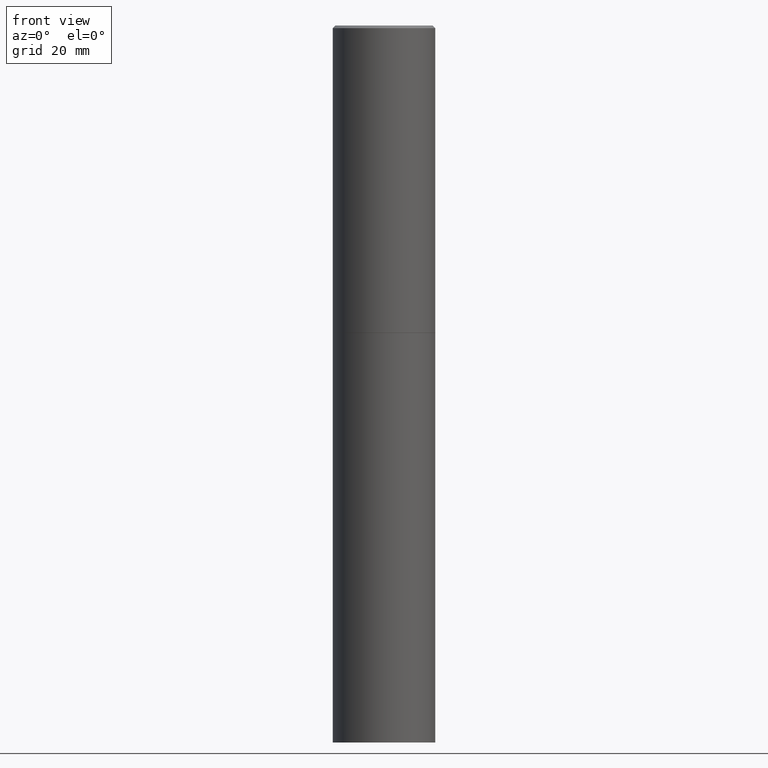
[diagram: clean part render]
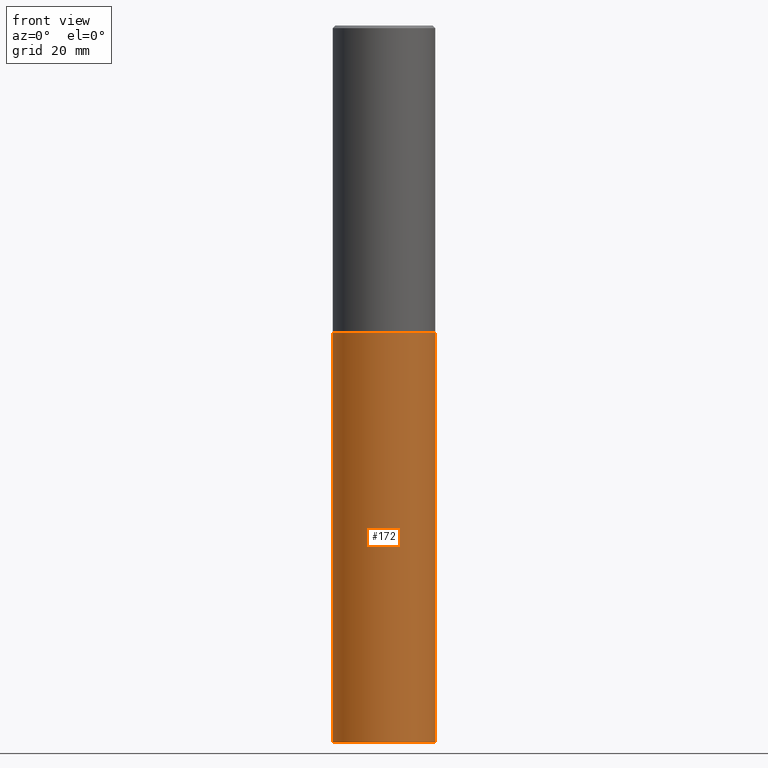
[diagram: same view with one face highlighted and labeled with its STEP entity id]
A machine part, front view. The second image highlights one B-rep face of the part: STEP entity #172.
In plain terms, the highlighted cylindrical surface (partial cylindrical patch) has radius 10 mm, axis along (-0, 0, 1).
Its self-contained STEP definition (entity closure, byte-faithful):
#1 = LINE ( 'NONE', #91, #218 ) ;
#22 = ORIENTED_EDGE ( 'NONE', *, *, #226, .F. ) ;
#27 = VERTEX_POINT ( 'NONE', #207 ) ;
#36 = EDGE_CURVE ( 'NONE', #145, #307, #176, .T. ) ;
#39 = DIRECTION ( 'NONE',  ( 1.000000000000000000, -6.982962677686265922E-15, 4.876176775795935793E-29 ) ) ;
#42 = EDGE_CURVE ( 'NONE', #307, #27, #206, .T. ) ;
#49 = ORIENTED_EDGE ( 'NONE', *, *, #198, .F. ) ;
#61 = DIRECTION ( 'NONE',  ( -2.445468806185136877E-29, 3.491481338843145188E-15, 1.000000000000000000 ) ) ;
#63 = DIRECTION ( 'NONE',  ( -2.445468806185136597E-29, 3.491481338843145583E-15, 1.000000000000000000 ) ) ;
#66 = AXIS2_PLACEMENT_3D ( 'NONE', #295, #63, #39 ) ;
#84 = EDGE_LOOP ( 'NONE', ( #49, #187, #114, #22 ) ) ;
#91 = CARTESIAN_POINT ( 'NONE',  ( -0.3937000000000000499, 2.797406750687514786E-15, -1.936584745033356735E-29 ) ) ;
#94 = DIRECTION ( 'NONE',  ( 1.000000000000000000, -6.982962677686267499E-15, 0.000000000000000000 ) ) ;
#104 = AXIS2_PLACEMENT_3D ( 'NONE', #227, #181, #333 ) ;
#114 = ORIENTED_EDGE ( 'NONE', *, *, #42, .T. ) ;
#135 = AXIS2_PLACEMENT_3D ( 'NONE', #349, #343, #94 ) ;
#144 = VECTOR ( 'NONE', #146, 39.37007874015748143 ) ;
#145 = VERTEX_POINT ( 'NONE', #209 ) ;
#146 = DIRECTION ( 'NONE',  ( -2.445468806185136877E-29, 3.491481338843145188E-15, 1.000000000000000000 ) ) ;
#172 = ADVANCED_FACE ( 'NONE', ( #325 ), #192, .T. ) ;
#176 = CIRCLE ( 'NONE', #104, 0.3937000000000000499 ) ;
#181 = DIRECTION ( 'NONE',  ( -2.445468806185136597E-29, 3.491481338843145583E-15, 1.000000000000000000 ) ) ;
#187 = ORIENTED_EDGE ( 'NONE', *, *, #36, .T. ) ;
#192 = CYLINDRICAL_SURFACE ( 'NONE', #66, 0.3937000000000000499 ) ;
#198 = EDGE_CURVE ( 'NONE', #145, #256, #1, .T. ) ;
#206 = LINE ( 'NONE', #309, #144 ) ;
#207 = CARTESIAN_POINT ( 'NONE',  ( 0.3937000000000000499, -1.099676962482036284E-14, -2.362200000000000077 ) ) ;
#209 = CARTESIAN_POINT ( 'NONE',  ( -0.3937000000000000499, -1.094855528033794942E-14, -5.511800000000000033 ) ) ;
#218 = VECTOR ( 'NONE', #61, 39.37007874015748143 ) ;
#226 = EDGE_CURVE ( 'NONE', #256, #27, #288, .T. ) ;
#227 = CARTESIAN_POINT ( 'NONE',  ( 1.347893496593123646E-28, -1.924434684343564878E-14, -5.511800000000000033 ) ) ;
#256 = VERTEX_POINT ( 'NONE', #277 ) ;
#277 = CARTESIAN_POINT ( 'NONE',  ( -0.3937000000000000499, -1.094855528033794942E-14, -2.362200000000000077 ) ) ;
#288 = CIRCLE ( 'NONE', #135, 0.3937000000000000499 ) ;
#295 = CARTESIAN_POINT ( 'NONE',  ( 0.000000000000000000, 0.000000000000000000, 0.000000000000000000 ) ) ;
#297 = CARTESIAN_POINT ( 'NONE',  ( 0.3937000000000000499, -2.199353924964073200E-14, -5.511800000000000033 ) ) ;
#307 = VERTEX_POINT ( 'NONE', #297 ) ;
#309 = CARTESIAN_POINT ( 'NONE',  ( 0.3937000000000000499, -2.749192406205083217E-15, 1.919750796630860172E-29 ) ) ;
#325 = FACE_OUTER_BOUND ( 'NONE', #84, .T. ) ;
#333 = DIRECTION ( 'NONE',  ( 1.000000000000000000, -6.982962677686267499E-15, 0.000000000000000000 ) ) ;
#343 = DIRECTION ( 'NONE',  ( -2.445468806185136597E-29, 3.491481338843145583E-15, 1.000000000000000000 ) ) ;
#349 = CARTESIAN_POINT ( 'NONE',  ( 5.776686413970529753E-29, -8.247577218615279626E-15, -2.362200000000000077 ) ) ;